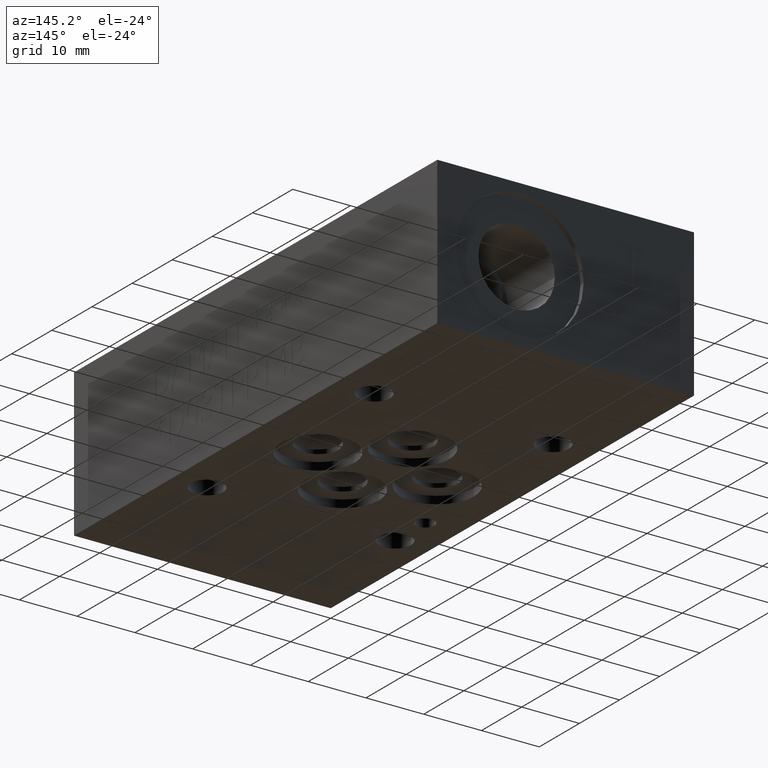
[diagram: clean part render]
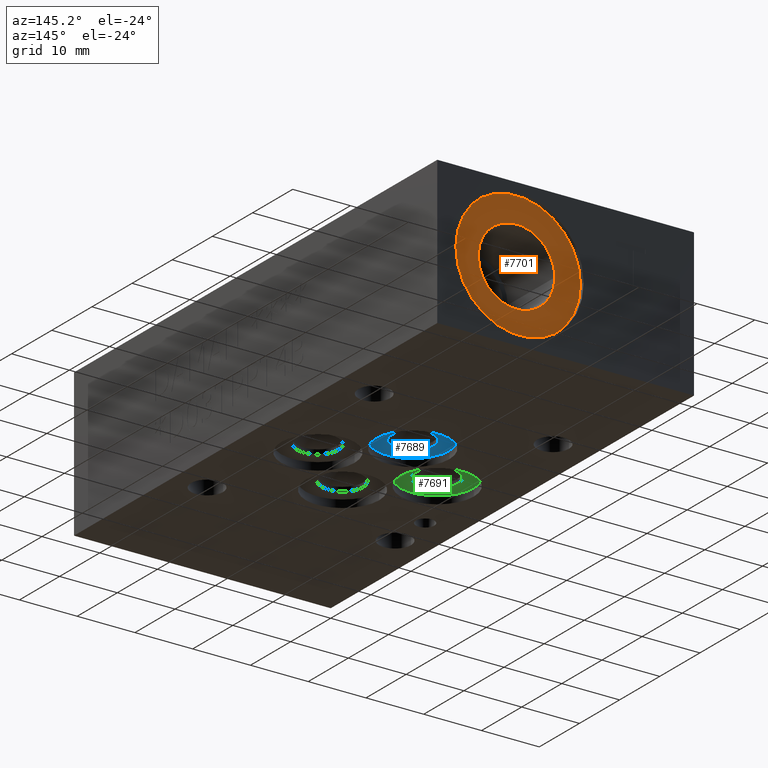
[diagram: same view with three faces highlighted in distinct colors, each labeled with its STEP entity id]
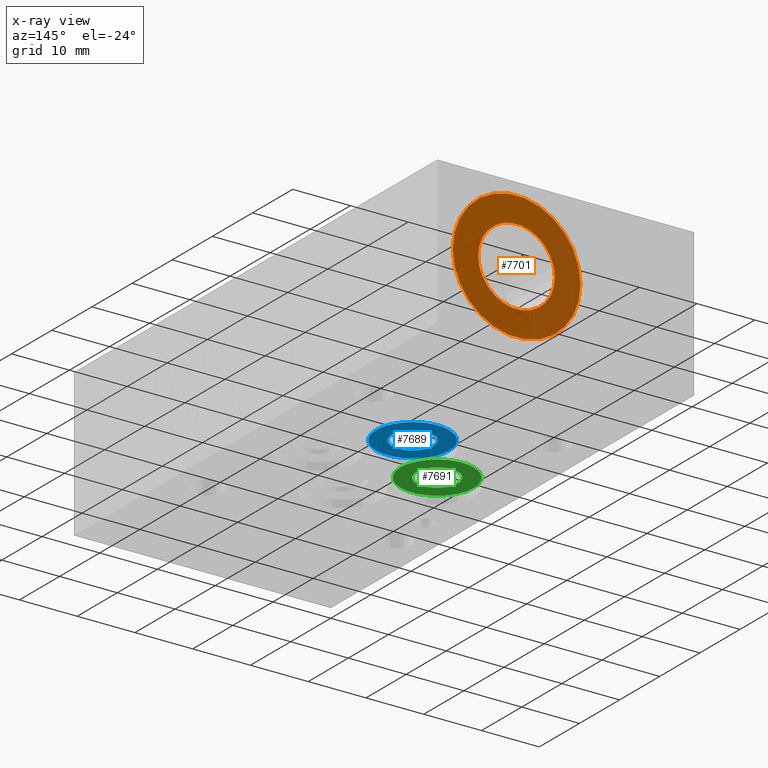
[diagram: x-ray of the same camera — body ghosted, the three highlighted faces saturated]
A machine part, auxiliary view with three faces highlighted in distinct colors.
The next image is the same camera in x-ray (body ghosted, the three faces saturated) — at least one of them is partly hidden behind the body in this view.
Their STEP definitions:

[orange] entity #7701 — the highlighted planar face has unit normal (0, -1, 0).
#76=CIRCLE('',#8053,11.0617);
#77=CIRCLE('',#8055,6.6294);
#142=FACE_BOUND('',#1221,.T.);
#786=FACE_OUTER_BOUND('',#1220,.T.);
#1220=EDGE_LOOP('',(#6582));
#1221=EDGE_LOOP('',(#6583));
#3571=VERTEX_POINT('',#12776);
#3572=VERTEX_POINT('',#12780);
#4591=EDGE_CURVE('',#3571,#3571,#76,.T.);
#4592=EDGE_CURVE('',#3572,#3572,#77,.T.);
#6582=ORIENTED_EDGE('',*,*,#4591,.F.);
#6583=ORIENTED_EDGE('',*,*,#4592,.T.);
#6992=PLANE('',#8054);
#7701=ADVANCED_FACE('',(#786,#142),#6992,.F.);
#8053=AXIS2_PLACEMENT_3D('',#12778,#9512,#9513);
#8054=AXIS2_PLACEMENT_3D('',#12779,#9514,#9515);
#8055=AXIS2_PLACEMENT_3D('',#12781,#9516,#9517);
#9512=DIRECTION('center_axis',(0.,-1.,0.));
#9513=DIRECTION('ref_axis',(1.,0.,0.));
#9514=DIRECTION('center_axis',(0.,-1.,0.));
#9515=DIRECTION('ref_axis',(0.,0.,-1.));
#9516=DIRECTION('center_axis',(0.,-1.,0.));
#9517=DIRECTION('ref_axis',(1.,0.,0.));
#12776=CARTESIAN_POINT('',(19.1135,89.7128,12.7));
#12778=CARTESIAN_POINT('Origin',(30.1752,89.7128,12.7));
#12779=CARTESIAN_POINT('Origin',(36.8046,89.7128,12.7));
#12780=CARTESIAN_POINT('',(23.5458,89.7128,12.7));
#12781=CARTESIAN_POINT('Origin',(30.1752,89.7128,12.7));

[blue] entity #7689 — the highlighted planar face has unit normal (0, 0, -1).
#56=CIRCLE('',#8014,3.5687);
#64=CIRCLE('',#8029,6.35);
#138=FACE_BOUND('',#1205,.T.);
#774=FACE_OUTER_BOUND('',#1204,.T.);
#1204=EDGE_LOOP('',(#6544));
#1205=EDGE_LOOP('',(#6545));
#3546=VERTEX_POINT('',#12697);
#3557=VERTEX_POINT('',#12730);
#4555=EDGE_CURVE('',#3546,#3546,#56,.T.);
#4571=EDGE_CURVE('',#3557,#3557,#64,.T.);
#6544=ORIENTED_EDGE('',*,*,#4571,.T.);
#6545=ORIENTED_EDGE('',*,*,#4555,.T.);
#6988=PLANE('',#8030);
#7689=ADVANCED_FACE('',(#774,#138),#6988,.T.);
#8014=AXIS2_PLACEMENT_3D('',#12698,#9418,#9419);
#8029=AXIS2_PLACEMENT_3D('',#12732,#9456,#9457);
#8030=AXIS2_PLACEMENT_3D('',#12733,#9458,#9459);
#9418=DIRECTION('center_axis',(0.,0.,1.));
#9419=DIRECTION('ref_axis',(1.,0.,0.));
#9456=DIRECTION('center_axis',(0.,0.,-1.));
#9457=DIRECTION('ref_axis',(1.,0.,0.));
#9458=DIRECTION('center_axis',(0.,0.,-1.));
#9459=DIRECTION('ref_axis',(1.,0.,0.));
#12697=CARTESIAN_POINT('',(18.6563,52.4002,1.3208));
#12698=CARTESIAN_POINT('Origin',(22.225,52.4002,1.3208));
#12730=CARTESIAN_POINT('',(15.875,52.4002,1.3208));
#12732=CARTESIAN_POINT('Origin',(22.225,52.4002,1.3208));
#12733=CARTESIAN_POINT('Origin',(22.225,52.4002,1.3208));

[green] entity #7691 — the highlighted planar face has unit normal (0, 0, -1).
#58=CIRCLE('',#8018,3.5687);
#66=CIRCLE('',#8033,6.35);
#139=FACE_BOUND('',#1208,.T.);
#776=FACE_OUTER_BOUND('',#1207,.T.);
#1207=EDGE_LOOP('',(#6550));
#1208=EDGE_LOOP('',(#6551));
#3549=VERTEX_POINT('',#12706);
#3559=VERTEX_POINT('',#12737);
#4559=EDGE_CURVE('',#3549,#3549,#58,.T.);
#4574=EDGE_CURVE('',#3559,#3559,#66,.T.);
#6550=ORIENTED_EDGE('',*,*,#4574,.T.);
#6551=ORIENTED_EDGE('',*,*,#4559,.T.);
#6989=PLANE('',#8034);
#7691=ADVANCED_FACE('',(#776,#139),#6989,.T.);
#8018=AXIS2_PLACEMENT_3D('',#12707,#9428,#9429);
#8033=AXIS2_PLACEMENT_3D('',#12739,#9465,#9466);
#8034=AXIS2_PLACEMENT_3D('',#12740,#9467,#9468);
#9428=DIRECTION('center_axis',(0.,0.,1.));
#9429=DIRECTION('ref_axis',(1.,0.,0.));
#9465=DIRECTION('center_axis',(0.,0.,-1.));
#9466=DIRECTION('ref_axis',(1.,0.,0.));
#9467=DIRECTION('center_axis',(0.,0.,-1.));
#9468=DIRECTION('ref_axis',(1.,0.,0.));
#12706=CARTESIAN_POINT('',(8.3439,43.6626,1.3208));
#12707=CARTESIAN_POINT('Origin',(11.9126,43.6626,1.3208));
#12737=CARTESIAN_POINT('',(5.5626,43.6626,1.3208));
#12739=CARTESIAN_POINT('Origin',(11.9126,43.6626,1.3208));
#12740=CARTESIAN_POINT('Origin',(11.9126,43.6626,1.3208));